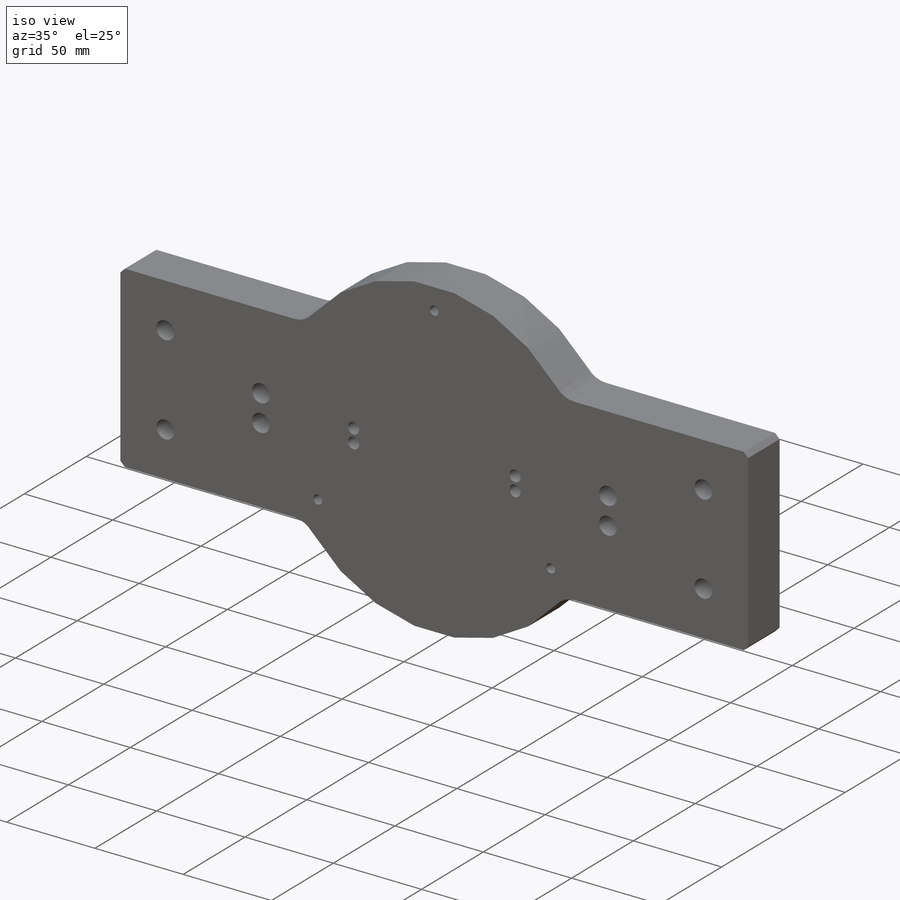
[diagram: iso view]
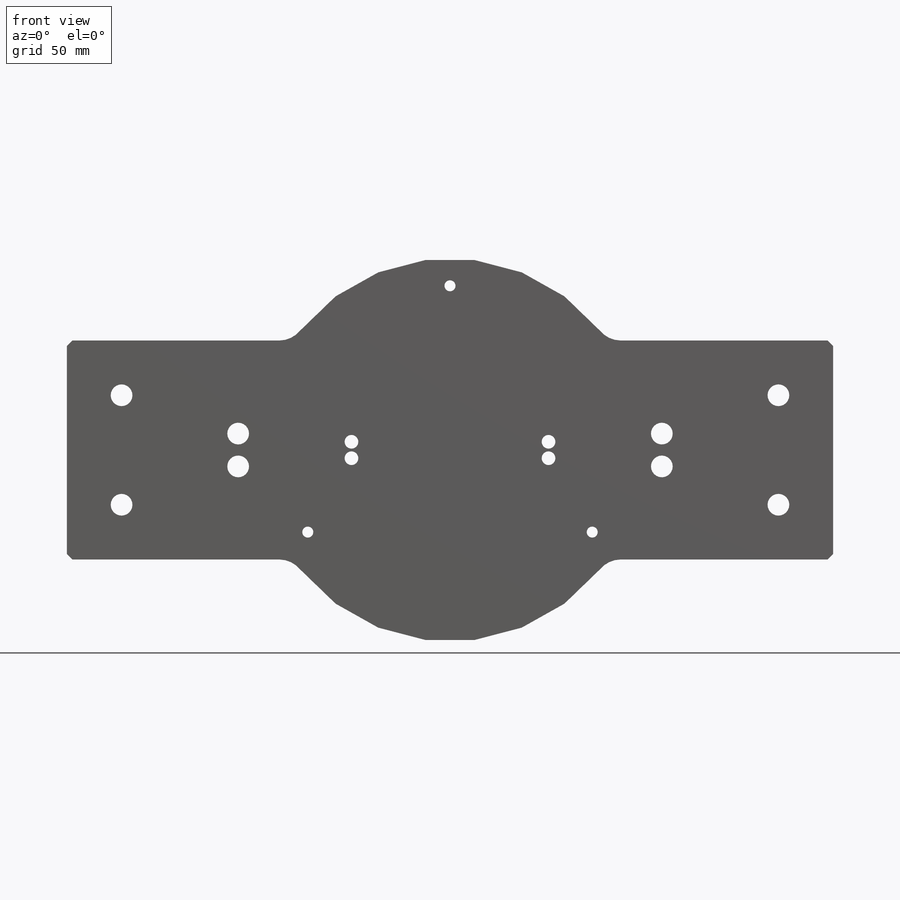
[diagram: front view]
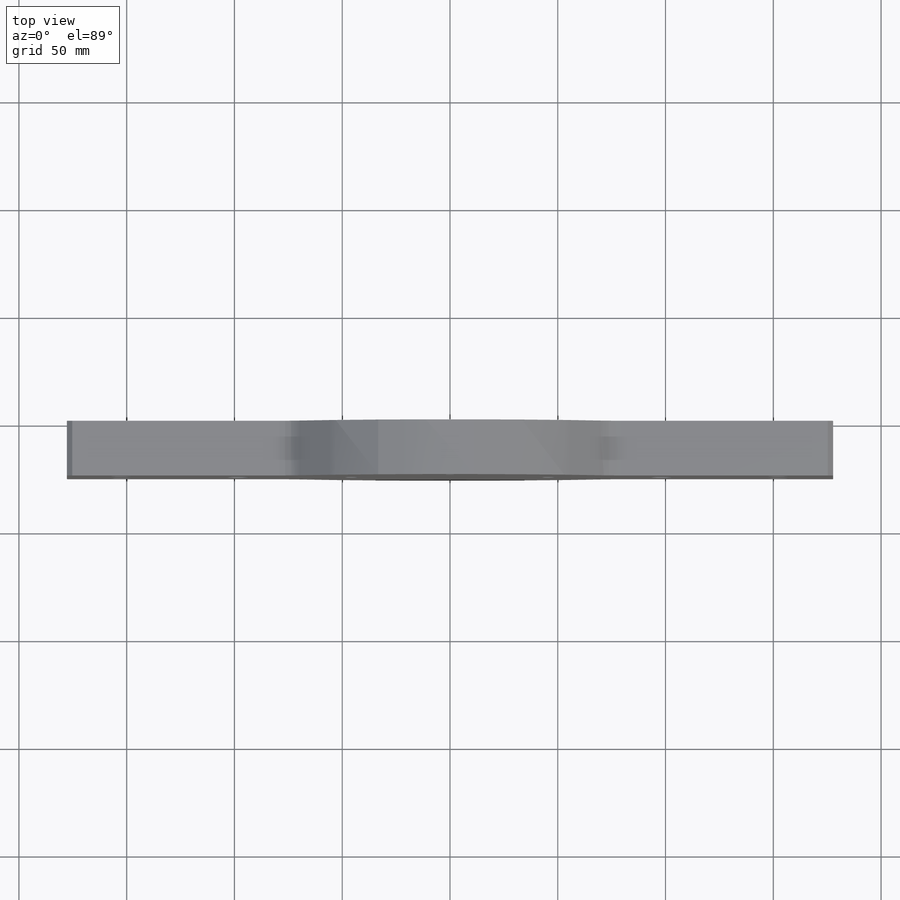
[diagram: top view]
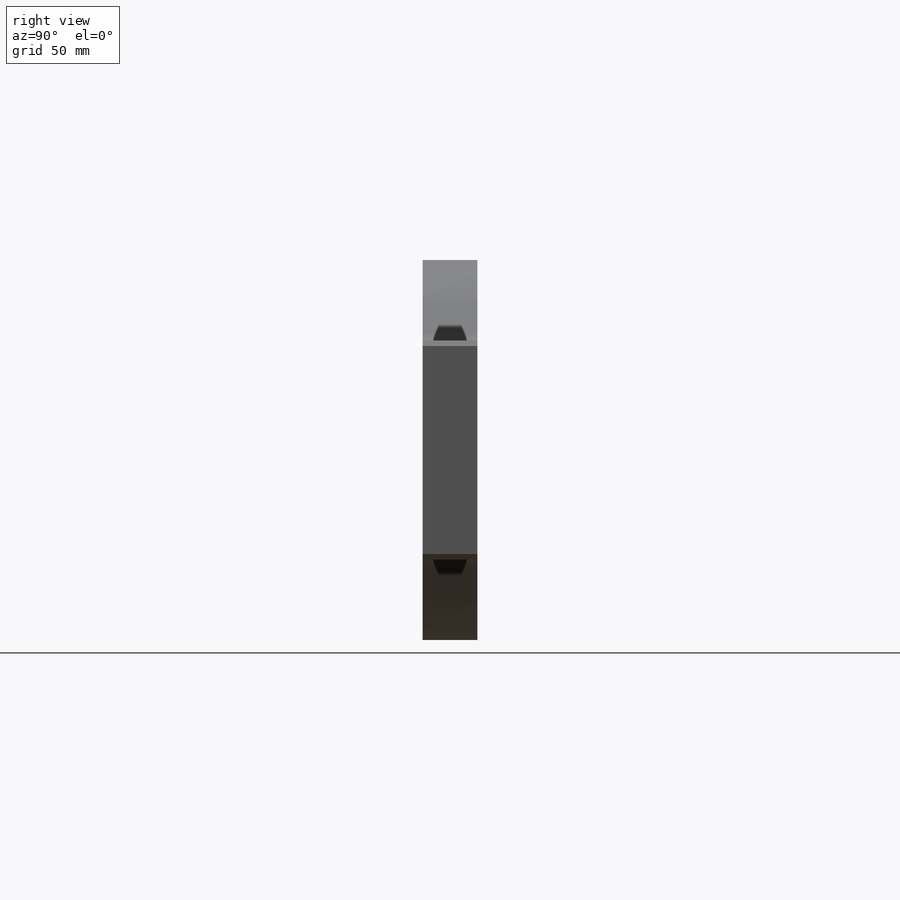
[diagram: right view]
SOLIDWORKS PART (.sldprt)
format: sldprt  version: not decoded by parser v0  size: 355,328 bytes
history: native  units: mm
features: sketch x10, hole x4, pattern_linear x3, extrude x2, material x1, plane x1, pattern_circular x1, fillet x1, chamfer x1 + 1 further entry (+13 scaffold rows collapsed)
feature tree (38):
  scaffold x13  (default folders/planes/origin — collapsed)
  material  "6061 Alloy"
  "Origin"  ID=-1
  sketch  "Sketch1"  dims[D1=101.6mm D2=355.6mm]
  extrude  "Extrude1"  Depth=25.4mm
  plane  "Plane1"  Offset=6.35mm
  sketch  "Sketch10"  dims[D1=177.8mm]
  extrude  "Extrude2"  [1 undecoded]
  hole  "#10 Clearance Hole1"  Diameter=5.1054mm Depth=25.4mm
  sketch  "Sketch3"  dims[c1.D1=76.2mm c1.D2=76.2mm c2.D1=76.2mm]
  sketch  "Sketch2"  dims[hole-wizard template sketch: 60 standard entries collapsed; hole parameters kept: c18.Thru Hole Depth=25.4mm]
  pattern_circular  "CirPattern1"  Count=3 Angle=360deg
  hole  "3/8 Clearance Hole2"  Diameter=10.0838mm Depth=25.4mm
  sketch  "Sketch5"  dims[D1=98.298mm D2=7.62mm]
  sketch  "Sketch4"  dims[hole-wizard template sketch: 60 standard entries collapsed; hole parameters kept: c18.Thru Hole Depth=25.4mm]
  pattern_linear  "LPattern1"  Count1=2 Count2=2 Spacing1=15.24mm Spacing2=196.596mm
  hole  "3/8 Clearance Hole1"  Diameter=10.0838mm Depth=25.4mm
  sketch  "Sketch7"  dims[c1.D1=12.7mm c1.D2=~16.414934mm c2.D2=90.0deg c3.D2=12.7mm c3.D1=152.4mm c4.D2=25.4mm]
  sketch  "Sketch6"  dims[hole-wizard template sketch: 60 standard entries collapsed; hole parameters kept: c18.Thru Hole Depth=25.4mm]
  pattern_linear  "LPattern2"  Count1=2 Count2=2 Spacing1=304.8mm Spacing2=50.8mm
  hole  "1/4 (0.25) Diameter Hole1"  Diameter=6.35mm Depth=25.4mm
  sketch  "Sketch9"  dims[c1.D1=45.72mm c1.D2=3.81mm c2.D1=45.72mm c2.D2=3.81mm]
  sketch  "Sketch8"  dims[hole-wizard template sketch: 47 standard entries collapsed; hole parameters kept: c15.Hole Depth=25.4mm c15.D3=~14.816244mm c15.Drill Angle=118.0deg]
  pattern_linear  "LPattern3"  Count1=2 Count2=2 Spacing1=7.62mm Spacing2=91.44mm
  fillet  "Fillet2"  Radius=12.7mm
  chamfer  "Chamfer1"  Distance=2.54mm Angle=45deg
decode coverage: 21 of 22 modeling features carry decoded parameters; 1 rows unclassified (native names shown)
note: ~ marks probable driven/reference dimensions
note: 1 parameter value undecoded
summary: Diameter pulled from absorbed wizard sketch
note: suppression state not decoded; provenance and decode notes live in map.json
